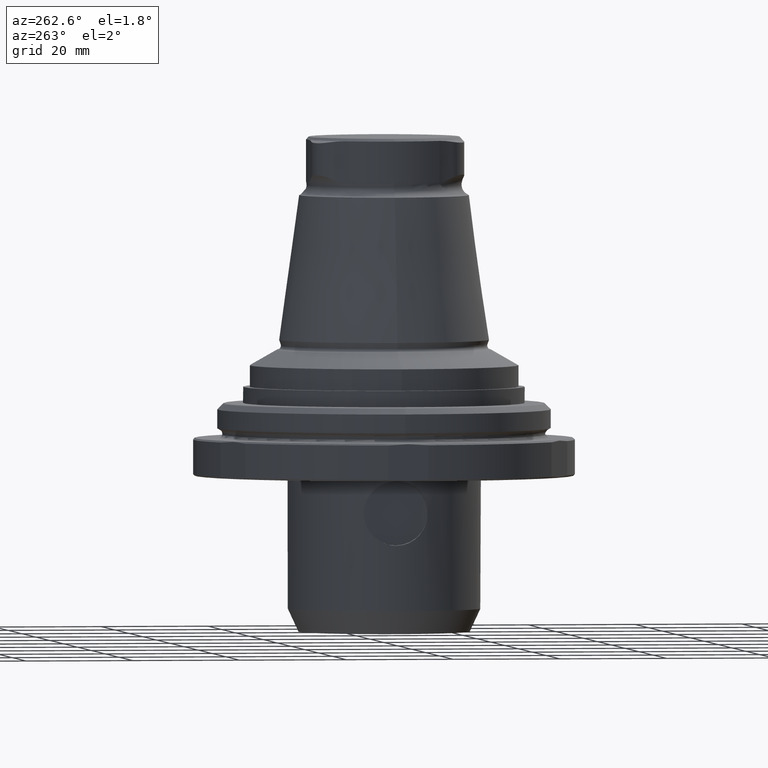
[diagram: clean part render]
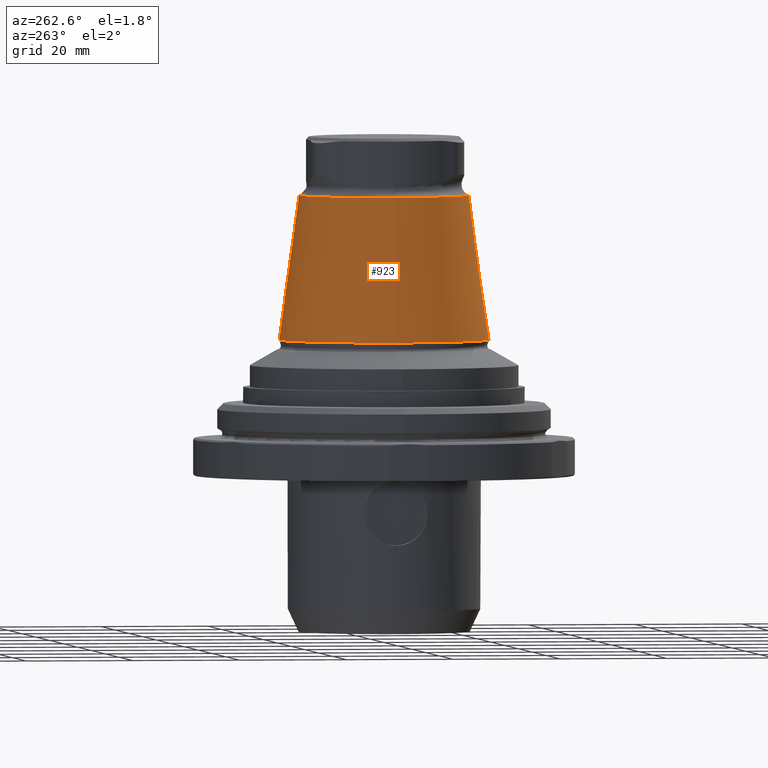
[diagram: same view with one face highlighted and labeled with its STEP entity id]
A machine part, auxiliary view. The second image highlights one B-rep face of the part: STEP entity #923.
In plain terms, the highlighted conical surface has half-angle 7.95 deg.
Its self-contained STEP definition (entity closure, byte-faithful):
#90=CONICAL_SURFACE('',#1022,19.5234803751964,0.138753675533549);
#133=CIRCLE('',#1021,15.7697129677509);
#134=CIRCLE('',#1023,19.5234803751964);
#280=ORIENTED_EDGE('',*,*,#476,.T.);
#281=ORIENTED_EDGE('',*,*,#477,.F.);
#476=EDGE_CURVE('',#583,#583,#133,.T.);
#477=EDGE_CURVE('',#584,#584,#134,.T.);
#583=VERTEX_POINT('',#1616);
#584=VERTEX_POINT('',#1619);
#712=EDGE_LOOP('',(#280));
#713=EDGE_LOOP('',(#281));
#808=FACE_BOUND('',#712,.T.);
#809=FACE_BOUND('',#713,.T.);
#923=ADVANCED_FACE('',(#808,#809),#90,.T.);
#1021=AXIS2_PLACEMENT_3D('',#1615,#1201,#1202);
#1022=AXIS2_PLACEMENT_3D('',#1617,#1203,#1204);
#1023=AXIS2_PLACEMENT_3D('',#1618,#1205,#1206);
#1201=DIRECTION('',(-4.38328612912168E-16,-8.51929322185263E-24,-1.));
#1202=DIRECTION('',(-1.,9.77164313006873E-16,4.38328610599545E-16));
#1203=DIRECTION('',(-4.38328612912168E-16,-8.51929322185263E-24,-1.));
#1204=DIRECTION('',(-1.,9.77164313006873E-16,4.38328610599545E-16));
#1205=DIRECTION('',(-4.38328612912168E-16,-8.51929322185263E-24,-1.));
#1206=DIRECTION('',(-1.,9.77164313006873E-16,4.38328610599545E-16));
#1615=CARTESIAN_POINT('',(-6.84295923615457E-14,-9.81645347925611E-14,44.108));
#1616=CARTESIAN_POINT('',(-15.7697129677509,-8.27549340541132E-14,44.108));
#1617=CARTESIAN_POINT('',(-8.02117003448131E-14,-9.81645350215565E-14,17.2283767306235));
#1618=CARTESIAN_POINT('',(-8.02117003448131E-14,-9.81645350215565E-14,17.2283767306235));
#1619=CARTESIAN_POINT('',(-19.5234803751965,-7.90868867332246E-14,17.2283767306235));